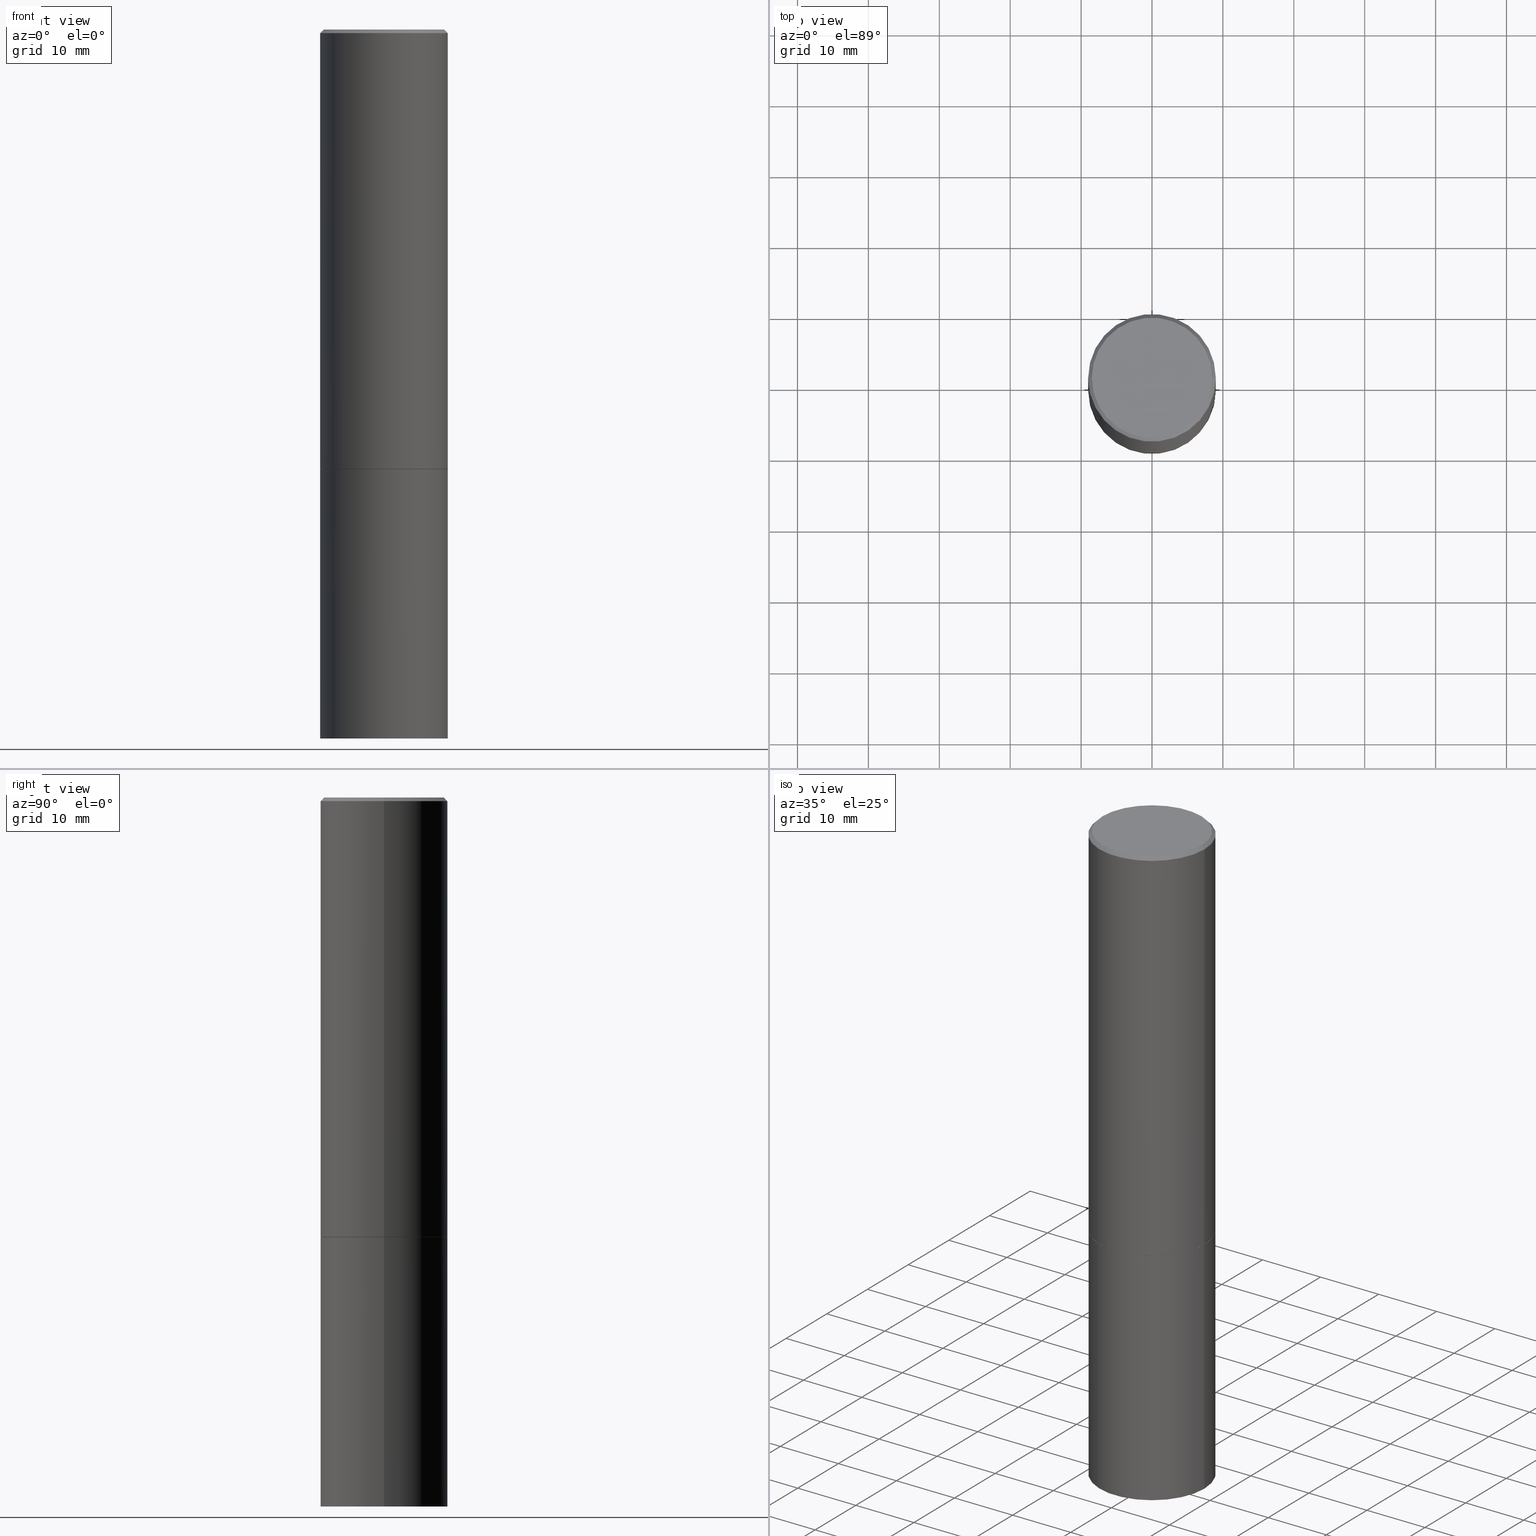
[diagram: canonical four-view strip — front | top / right | iso, engineering-drawing reading convention]
A machine part, canonical four-view strip (front | top / right | iso — engineering-drawing reading convention). The complete STEP part file that produces these views, byte-faithful:
ISO-10303-21;
HEADER;
FILE_DESCRIPTION (( 'STEP AP203' ),
    '1' );
FILE_NAME ('48774.STEP',
    '2024-02-28T14:32:07',
    ( '' ),
    ( '' ),
    'SwSTEP 2.0',
    'SolidWorks 2023',
    '' );
FILE_SCHEMA (( 'CONFIG_CONTROL_DESIGN' ));
ENDSEC;

DATA;
#1 = COORDINATED_UNIVERSAL_TIME_OFFSET ( 5, 0, .BEHIND. ) ;
#2 = EDGE_CURVE ( 'NONE', #173, #130, #120, .T. ) ;
#3 = VERTEX_POINT ( 'NONE', #178 ) ;
#4 = ORIENTED_EDGE ( 'NONE', *, *, #361, .T. ) ;
#5 = EDGE_CURVE ( 'NONE', #58, #191, #153, .T. ) ;
#6 = EDGE_LOOP ( 'NONE', ( #194, #89, #85, #307 ) ) ;
#7 = ORIENTED_EDGE ( 'NONE', *, *, #334, .T. ) ;
#8 = DIRECTION ( 'NONE',  ( 1.000000000000000000, -6.982962677686265922E-15, 0.000000000000000000 ) ) ;
#9 = AXIS2_PLACEMENT_3D ( 'NONE', #214, #159, #212 ) ;
#10 = CARTESIAN_POINT ( 'NONE',  ( 4.890937612370294178E-31, -6.982962677686321191E-17, -0.02000000000000008715 ) ) ;
#11 = DIRECTION ( 'NONE',  ( 2.445468806185136597E-29, -3.491481338843145583E-15, -1.000000000000000000 ) ) ;
#12 = DIRECTION ( 'NONE',  ( 1.000000000000000000, -6.982962677686266711E-15, 4.876176775795935232E-29 ) ) ;
#13 = VECTOR ( 'NONE', #344, 39.37007874015748143 ) ;
#14 = VECTOR ( 'NONE', #201, 39.37007874015748854 ) ;
#15 = LOCAL_TIME ( 9, 32, 7.000000000000000000, #320 ) ;
#16 = CARTESIAN_POINT ( 'NONE',  ( -0.3533499999999999974, -6.006355588825696969E-15, -2.440900000000000070 ) ) ;
#17 = PRODUCT_DEFINITION ( 'UNKNOWN', '', #96, #249 ) ;
#18 = FACE_OUTER_BOUND ( 'NONE', #92, .T. ) ;
#19 = FACE_OUTER_BOUND ( 'NONE', #81, .T. ) ;
#20 = EDGE_CURVE ( 'NONE', #3, #140, #128, .T. ) ;
#21 = DIRECTION ( 'NONE',  ( -2.445468806185136597E-29, 3.491481338843145583E-15, 1.000000000000000000 ) ) ;
#22 = CONICAL_SURFACE ( 'NONE', #9, 0.3533499999999999974, 0.7853981633975507526 ) ;
#23 = EDGE_LOOP ( 'NONE', ( #228, #319, #56, #51 ) ) ;
#24 = DIRECTION ( 'NONE',  ( 1.000000000000000000, -6.982962677686268288E-15, 0.000000000000000000 ) ) ;
#25 = DIRECTION ( 'NONE',  ( 1.000000000000000000, -6.982962677686265922E-15, 0.000000000000000000 ) ) ;
#26 =( NAMED_UNIT ( * ) PLANE_ANGLE_UNIT ( ) SI_UNIT ( $, .RADIAN. ) );
#27 = AXIS2_PLACEMENT_3D ( 'NONE', #80, #113, #247 ) ;
#28 = PRODUCT_DEFINITION_SHAPE ( 'NONE', 'NONE',  #17 ) ;
#29 = CC_DESIGN_APPROVAL ( #219, ( #96 ) ) ;
#30 = DATE_TIME_ROLE ( 'creation_date' ) ;
#31 = ORIENTED_EDGE ( 'NONE', *, *, #71, .T. ) ;
#32 = APPROVAL_STATUS ( 'not_yet_approved' ) ;
#33 = ORIENTED_EDGE ( 'NONE', *, *, #5, .T. ) ;
#34 = EDGE_CURVE ( 'NONE', #112, #39, #210, .T. ) ;
#35 = MECHANICAL_CONTEXT ( 'NONE', #281, 'mechanical' ) ;
#36 = ORIENTED_EDGE ( 'NONE', *, *, #310, .F. ) ;
#37 = CIRCLE ( 'NONE', #38, 0.3543499999999999983 ) ;
#38 = AXIS2_PLACEMENT_3D ( 'NONE', #213, #296, #264 ) ;
#39 = VERTEX_POINT ( 'NONE', #295 ) ;
#40 = ORIENTED_EDGE ( 'NONE', *, *, #206, .T. ) ;
#41 = PLANE ( 'NONE',  #218 ) ;
#42 = CARTESIAN_POINT ( 'NONE',  ( 5.969144809017299038E-29, -8.522356799982232966E-15, -2.440900000000000070 ) ) ;
#43 = FACE_OUTER_BOUND ( 'NONE', #341, .T. ) ;
#44 = EDGE_CURVE ( 'NONE', #140, #39, #115, .T. ) ;
#45 = DIRECTION ( 'NONE',  ( 1.000000000000000000, -6.982962677686265922E-15, 0.000000000000000000 ) ) ;
#46 = AXIS2_PLACEMENT_3D ( 'NONE', #220, #308, #25 ) ;
#47 = CARTESIAN_POINT ( 'NONE',  ( 0.000000000000000000, 0.000000000000000000, 0.000000000000000000 ) ) ;
#48 = ADVANCED_BREP_SHAPE_REPRESENTATION ( '48774', ( #224, #347, #166 ), #123 ) ;
#49 = DIRECTION ( 'NONE',  ( 1.000000000000000000, -6.982962677686266711E-15, 0.000000000000000000 ) ) ;
#50 = EDGE_CURVE ( 'NONE', #363, #130, #314, .T. ) ;
#51 = ORIENTED_EDGE ( 'NONE', *, *, #345, .T. ) ;
#52 = PLANE ( 'NONE',  #359 ) ;
#53 = CARTESIAN_POINT ( 'NONE',  ( 5.969144809017299038E-29, -8.522356799982232966E-15, -2.440900000000000070 ) ) ;
#54 = AXIS2_PLACEMENT_3D ( 'NONE', #268, #350, #12 ) ;
#55 = FACE_OUTER_BOUND ( 'NONE', #287, .T. ) ;
#56 = ORIENTED_EDGE ( 'NONE', *, *, #50, .T. ) ;
#57 = PRODUCT_RELATED_PRODUCT_CATEGORY ( 'detail', '', ( #278 ) ) ;
#58 = VERTEX_POINT ( 'NONE', #147 ) ;
#59 = ORIENTED_EDGE ( 'NONE', *, *, #310, .T. ) ;
#60 = PERSON_AND_ORGANIZATION ( #266, #215 ) ;
#61 = ORIENTED_EDGE ( 'NONE', *, *, #182, .T. ) ;
#62 = DIMENSIONAL_EXPONENTS ( 1.000000000000000000, 0.000000000000000000, 0.000000000000000000, 0.000000000000000000, 0.000000000000000000, 0.000000000000000000, 0.000000000000000000 ) ;
#63 = DIRECTION ( 'NONE',  ( 0.000000000000000000, 0.000000000000000000, 1.000000000000000000 ) ) ;
#64 = ORIENTED_EDGE ( 'NONE', *, *, #2, .T. ) ;
#65 = APPROVAL_ROLE ( '' ) ;
#66 = EDGE_LOOP ( 'NONE', ( #91, #145 ) ) ;
#67 = VECTOR ( 'NONE', #180, 39.37007874015748143 ) ;
#68 = AXIS2_PLACEMENT_3D ( 'NONE', #302, #73, #45 ) ;
#69 = APPROVAL_DATE_TIME ( #146, #219 ) ;
#70 = CARTESIAN_POINT ( 'NONE',  ( 0.3543499999999999983, -2.474412824838128694E-15, 1.727873240503289749E-29 ) ) ;
#71 = EDGE_CURVE ( 'NONE', #363, #207, #366, .T. ) ;
#72 = DIRECTION ( 'NONE',  ( 1.000000000000000000, -6.982962677686266711E-15, 4.876176775795935232E-29 ) ) ;
#73 = DIRECTION ( 'NONE',  ( -2.445468806185136597E-29, 3.491481338843145583E-15, 1.000000000000000000 ) ) ;
#74 = CALENDAR_DATE ( 2024, 28, 2 ) ;
#75 = CARTESIAN_POINT ( 'NONE',  ( 2.474412824838224146E-15, 0.3543499999999862871, -3.937000000000001165 ) ) ;
#76 = EDGE_CURVE ( 'NONE', #3, #112, #37, .T. ) ;
#77 = DIRECTION ( 'NONE',  ( -2.445468806185136597E-29, 3.491481338843145583E-15, 1.000000000000000000 ) ) ;
#78 = FACE_OUTER_BOUND ( 'NONE', #260, .T. ) ;
#79 = CC_DESIGN_PERSON_AND_ORGANIZATION_ASSIGNMENT ( #346, #227, ( #96 ) ) ;
#80 = CARTESIAN_POINT ( 'NONE',  ( 4.890937612370294178E-31, -6.982962677686321191E-17, -0.02000000000000008715 ) ) ;
#81 = EDGE_LOOP ( 'NONE', ( #31, #235 ) ) ;
#82 =( LENGTH_UNIT ( ) NAMED_UNIT ( * ) SI_UNIT ( $, .METRE. ) );
#83 = ADVANCED_FACE ( 'NONE', ( #270 ), #327, .T. ) ;
#84 =( NAMED_UNIT ( * ) SI_UNIT ( $, .STERADIAN. ) SOLID_ANGLE_UNIT ( ) );
#85 = ORIENTED_EDGE ( 'NONE', *, *, #34, .T. ) ;
#86 = CARTESIAN_POINT ( 'NONE',  ( 0.000000000000000000, 0.000000000000000000, 0.000000000000000000 ) ) ;
#87 = CARTESIAN_POINT ( 'NONE',  ( -0.3543499999999997208, 2.404583198061263424E-15, -0.02000000000000008715 ) ) ;
#88 = EDGE_CURVE ( 'NONE', #58, #173, #355, .T. ) ;
#89 = ORIENTED_EDGE ( 'NONE', *, *, #76, .T. ) ;
#90 = VECTOR ( 'NONE', #336, 39.37007874015748143 ) ;
#91 = ORIENTED_EDGE ( 'NONE', *, *, #245, .F. ) ;
#92 = EDGE_LOOP ( 'NONE', ( #254, #4, #285, #154 ) ) ;
#93 = PERSON_AND_ORGANIZATION ( #266, #215 ) ;
#94 = DIRECTION ( 'NONE',  ( -2.445468806185136877E-29, 3.491481338843145188E-15, 1.000000000000000000 ) ) ;
#95 = CIRCLE ( 'NONE', #304, 0.3543499999999997208 ) ;
#96 = PRODUCT_DEFINITION_FORMATION_WITH_SPECIFIED_SOURCE ( 'ANY', '', #278, .NOT_KNOWN. ) ;
#97 = ADVANCED_FACE ( 'NONE', ( #217 ), #41, .T. ) ;
#98 = DATE_AND_TIME ( #74, #109 ) ;
#99 = FACE_OUTER_BOUND ( 'NONE', #6, .T. ) ;
#100 = DIRECTION ( 'NONE',  ( 1.000000000000000000, -6.982962677686266711E-15, 4.876176775795935793E-29 ) ) ;
#101 = DIRECTION ( 'NONE',  ( 1.000000000000000000, -6.982962677686268288E-15, 0.000000000000000000 ) ) ;
#102 = ADVANCED_FACE ( 'NONE', ( #158 ), #132, .T. ) ;
#103 = CLOSED_SHELL ( 'NONE', ( #329, #83, #114, #133, #102, #156, #286, #351 ) ) ;
#104 = CONICAL_SURFACE ( 'NONE', #131, 0.3543499999999997208, 0.7853981633974476129 ) ;
#105 = CC_DESIGN_APPROVAL ( #199, ( #17 ) ) ;
#106 = DIRECTION ( 'NONE',  ( 1.000000000000000000, -6.982962677686266711E-15, 4.876061227832602160E-29 ) ) ;
#107 = DIRECTION ( 'NONE',  ( -2.445468806185136597E-29, 3.491481338843145583E-15, 1.000000000000000000 ) ) ;
#108 = AXIS2_PLACEMENT_3D ( 'NONE', #42, #107, #333 ) ;
#109 = LOCAL_TIME ( 9, 32, 7.000000000000000000, #256 ) ;
#110 = DIRECTION ( 'NONE',  ( -2.445468806185136597E-29, 3.491481338843145583E-15, 1.000000000000000000 ) ) ;
#111 = CARTESIAN_POINT ( 'NONE',  ( 0.3543499999999997208, -2.500847092287203718E-15, -0.02000000000000008715 ) ) ;
#112 = VERTEX_POINT ( 'NONE', #155 ) ;
#113 = DIRECTION ( 'NONE',  ( -2.445468806185136597E-29, 3.491481338843145583E-15, 1.000000000000000000 ) ) ;
#114 = ADVANCED_FACE ( 'NONE', ( #18 ), #104, .T. ) ;
#115 = CIRCLE ( 'NONE', #322, 0.3543499999999999983 ) ;
#116 = LENGTH_MEASURE_WITH_UNIT ( LENGTH_MEASURE( 0.02539999999999999897 ), #82 );
#117 = APPROVAL_ROLE ( '' ) ;
#118 = EDGE_CURVE ( 'NONE', #258, #58, #134, .T. ) ;
#119 = PERSON_AND_ORGANIZATION_ROLE ( 'design_owner' ) ;
#120 = LINE ( 'NONE', #126, #196 ) ;
#121 = DATE_AND_TIME ( #176, #15 ) ;
#122 = DIRECTION ( 'NONE',  ( -2.445468806185136877E-29, 3.491481338843145188E-15, 1.000000000000000000 ) ) ;
#123 =( GEOMETRIC_REPRESENTATION_CONTEXT ( 3 ) GLOBAL_UNCERTAINTY_ASSIGNED_CONTEXT ( ( #129 ) ) GLOBAL_UNIT_ASSIGNED_CONTEXT ( ( #338, #26, #84 ) ) REPRESENTATION_CONTEXT ( 'NONE', 'WORKASPACE' ) );
#124 = LOCAL_TIME ( 9, 32, 7.000000000000000000, #208 ) ;
#125 = PERSON_AND_ORGANIZATION_ROLE ( 'creator' ) ;
#126 = CARTESIAN_POINT ( 'NONE',  ( -0.3543499999999998873, 2.517808184165914208E-15, -1.743024649231825225E-29 ) ) ;
#127 = DATE_AND_TIME ( #174, #171 ) ;
#128 = LINE ( 'NONE', #343, #223 ) ;
#129 = UNCERTAINTY_MEASURE_WITH_UNIT (LENGTH_MEASURE( 1.000000000000000082E-05 ), #338, 'distance_accuracy_value', 'NONE');
#130 = VERTEX_POINT ( 'NONE', #216 ) ;
#131 = AXIS2_PLACEMENT_3D ( 'NONE', #137, #11, #239 ) ;
#132 = CYLINDRICAL_SURFACE ( 'NONE', #54, 0.3543499999999998873 ) ;
#133 = ADVANCED_FACE ( 'NONE', ( #332 ), #225, .T. ) ;
#134 = LINE ( 'NONE', #244, #283 ) ;
#135 = DIRECTION ( 'NONE',  ( -2.445468806185136597E-29, 3.491481338843145583E-15, 1.000000000000000000 ) ) ;
#136 = CARTESIAN_POINT ( 'NONE',  ( 0.000000000000000000, 0.000000000000000000, 0.000000000000000000 ) ) ;
#137 = CARTESIAN_POINT ( 'NONE',  ( 4.890937612370294178E-31, -6.982962677686321191E-17, -0.02000000000000008715 ) ) ;
#138 = CARTESIAN_POINT ( 'NONE',  ( 0.3533499999999999974, -1.098978666214267525E-14, -2.440900000000000070 ) ) ;
#139 = CARTESIAN_POINT ( 'NONE',  ( 5.969144809017300159E-29, -8.522356799982234543E-15, -2.440900000000000070 ) ) ;
#140 = VERTEX_POINT ( 'NONE', #160 ) ;
#141 = CARTESIAN_POINT ( 'NONE',  ( -0.3343499999999996475, 2.369668384672832169E-15, 4.268512490083961526E-18 ) ) ;
#142 = DIRECTION ( 'NONE',  ( 1.000000000000000000, -6.982962677686265133E-15, 0.000000000000000000 ) ) ;
#143 = ORIENTED_EDGE ( 'NONE', *, *, #245, .T. ) ;
#144 = CIRCLE ( 'NONE', #209, 0.3343499999999996475 ) ;
#145 = ORIENTED_EDGE ( 'NONE', *, *, #76, .F. ) ;
#146 = DATE_AND_TIME ( #316, #360 ) ;
#147 = CARTESIAN_POINT ( 'NONE',  ( 0.3543499999999999983, -1.099327814348151984E-14, -2.439900000000000180 ) ) ;
#148 = APPROVAL_ROLE ( '' ) ;
#149 = VERTEX_POINT ( 'NONE', #16 ) ;
#150 = ORIENTED_EDGE ( 'NONE', *, *, #182, .F. ) ;
#151 = AXIS2_PLACEMENT_3D ( 'NONE', #47, #240, #162 ) ;
#152 = ADVANCED_FACE ( 'NONE', ( #99 ), #352, .T. ) ;
#153 = LINE ( 'NONE', #232, #13 ) ;
#154 = ORIENTED_EDGE ( 'NONE', *, *, #50, .F. ) ;
#155 = CARTESIAN_POINT ( 'NONE',  ( 0.3543499999999999983, -1.622037485586359329E-14, -3.937000000000000277 ) ) ;
#156 = ADVANCED_FACE ( 'NONE', ( #43 ), #22, .T. ) ;
#157 = APPROVAL_PERSON_ORGANIZATION ( #170, #199, #65 ) ;
#158 = FACE_OUTER_BOUND ( 'NONE', #280, .T. ) ;
#159 = DIRECTION ( 'NONE',  ( -2.445468806185136597E-29, 3.491481338843145583E-15, 1.000000000000000000 ) ) ;
#160 = CARTESIAN_POINT ( 'NONE',  ( -0.3543499999999999983, -8.616351231337934377E-15, -2.440900000000000070 ) ) ;
#161 = CC_DESIGN_SECURITY_CLASSIFICATION ( #189, ( #96 ) ) ;
#162 = DIRECTION ( 'NONE',  ( 1.000000000000000000, -6.982962677686266711E-15, 4.876176775795935793E-29 ) ) ;
#163 = CARTESIAN_POINT ( 'NONE',  ( 2.334753571284400520E-15, 0.3343499999999996475, -1.165242529397154385E-15 ) ) ;
#164 = FACE_OUTER_BOUND ( 'NONE', #248, .T. ) ;
#165 = EDGE_CURVE ( 'NONE', #207, #363, #144, .T. ) ;
#166 = AXIS2_PLACEMENT_3D ( 'NONE', #86, #63, #342 ) ;
#167 = CC_DESIGN_APPROVAL ( #323, ( #189 ) ) ;
#168 = CARTESIAN_POINT ( 'NONE',  ( -0.3533499999999999974, -6.011654043173919372E-15, -2.440900000000000070 ) ) ;
#169 = DIRECTION ( 'NONE',  ( -2.445468806185136597E-29, 3.491481338843145583E-15, 1.000000000000000000 ) ) ;
#170 = PERSON_AND_ORGANIZATION ( #266, #215 ) ;
#171 = LOCAL_TIME ( 9, 32, 7.000000000000000000, #1 ) ;
#172 = ORIENTED_EDGE ( 'NONE', *, *, #250, .F. ) ;
#173 = VERTEX_POINT ( 'NONE', #328 ) ;
#174 = CALENDAR_DATE ( 2024, 28, 2 ) ;
#175 = DIRECTION ( 'NONE',  ( -2.445468806185136597E-29, 3.491481338843145583E-15, 1.000000000000000000 ) ) ;
#176 = CALENDAR_DATE ( 2024, 28, 2 ) ;
#177 = CIRCLE ( 'NONE', #68, 0.3543499999999999983 ) ;
#178 = CARTESIAN_POINT ( 'NONE',  ( -0.3543499999999999983, -8.616351231337934377E-15, -3.937000000000000277 ) ) ;
#179 = CALENDAR_DATE ( 2024, 28, 2 ) ;
#180 = DIRECTION ( 'NONE',  ( -2.445468806185136877E-29, 3.491481338843145188E-15, 1.000000000000000000 ) ) ;
#181 = DIRECTION ( 'NONE',  ( -2.445468806185136597E-29, 3.491481338843145583E-15, 1.000000000000000000 ) ) ;
#182 = EDGE_CURVE ( 'NONE', #39, #140, #177, .T. ) ;
#183 = DIRECTION ( 'NONE',  ( 2.438088387897960049E-29, -3.491481338843145188E-15, -1.000000000000000000 ) ) ;
#184 = DIRECTION ( 'NONE',  ( 0.7071067811866199593, -2.468850131083015945E-15, 0.7071067811864750752 ) ) ;
#185 = CARTESIAN_POINT ( 'NONE',  ( -1.043851414335219820E-46, 1.490343170380447200E-32, 4.268512490100411279E-18 ) ) ;
#186 = CC_DESIGN_DATE_AND_TIME_ASSIGNMENT ( #294, #229, ( #189 ) ) ;
#187 = DIRECTION ( 'NONE',  ( -2.445468806185136597E-29, 3.491481338843145583E-15, 1.000000000000000000 ) ) ;
#188 = CIRCLE ( 'NONE', #202, 0.3533499999999999974 ) ;
#189 = SECURITY_CLASSIFICATION ( '', '', #340 ) ;
#190 = CARTESIAN_POINT ( 'NONE',  ( 4.890937612370294178E-31, -6.982962677686321191E-17, -0.02000000000000008715 ) ) ;
#191 = VERTEX_POINT ( 'NONE', #298 ) ;
#192 = APPLICATION_PROTOCOL_DEFINITION ( 'international standard', 'config_control_design', 1994, #281 ) ;
#193 = CC_DESIGN_PERSON_AND_ORGANIZATION_ASSIGNMENT ( #325, #253, ( #189 ) ) ;
#194 = ORIENTED_EDGE ( 'NONE', *, *, #20, .F. ) ;
#195 = DIRECTION ( 'NONE',  ( -1.000000000000000000, 6.982962677686265922E-15, -4.876176775795935793E-29 ) ) ;
#196 = VECTOR ( 'NONE', #122, 39.37007874015748143 ) ;
#197 = CARTESIAN_POINT ( 'NONE',  ( 5.966699340211115678E-29, -8.518865318643391536E-15, -2.439900000000000180 ) ) ;
#198 = ORIENTED_EDGE ( 'NONE', *, *, #250, .T. ) ;
#199 = APPROVAL ( #284, 'UNSPECIFIED' ) ;
#200 = APPROVAL_DATE_TIME ( #127, #199 ) ;
#201 = DIRECTION ( 'NONE',  ( -0.7071067811865469066, 2.468850131082251144E-15, -0.7071067811865479058 ) ) ;
#202 = AXIS2_PLACEMENT_3D ( 'NONE', #53, #305, #142 ) ;
#203 = COORDINATED_UNIVERSAL_TIME_OFFSET ( 5, 0, .BEHIND. ) ;
#204 = ORIENTED_EDGE ( 'NONE', *, *, #34, .F. ) ;
#205 = ORIENTED_EDGE ( 'NONE', *, *, #5, .F. ) ;
#206 = EDGE_CURVE ( 'NONE', #149, #258, #263, .T. ) ;
#207 = VERTEX_POINT ( 'NONE', #265 ) ;
#208 = COORDINATED_UNIVERSAL_TIME_OFFSET ( 5, 0, .BEHIND. ) ;
#209 = AXIS2_PLACEMENT_3D ( 'NONE', #185, #187, #357 ) ;
#210 = LINE ( 'NONE', #70, #67 ) ;
#211 = SHAPE_DEFINITION_REPRESENTATION ( #28, #48 ) ;
#212 = DIRECTION ( 'NONE',  ( 1.000000000000000000, -6.982962677686265133E-15, 0.000000000000000000 ) ) ;
#213 = CARTESIAN_POINT ( 'NONE',  ( 9.627810689950883669E-29, -1.374596203102546341E-14, -3.937000000000000277 ) ) ;
#214 = CARTESIAN_POINT ( 'NONE',  ( 5.969144809017299038E-29, -8.522356799982232966E-15, -2.440900000000000070 ) ) ;
#215 = ORGANIZATION ( 'UNSPECIFIED', 'UNSPECIFIED', '' ) ;
#216 = CARTESIAN_POINT ( 'NONE',  ( -0.3543499999999997208, 2.404583198061263424E-15, -0.02000000000000008715 ) ) ;
#217 = FACE_OUTER_BOUND ( 'NONE', #66, .T. ) ;
#218 = AXIS2_PLACEMENT_3D ( 'NONE', #75, #183, #353 ) ;
#219 = APPROVAL ( #259, 'UNSPECIFIED' ) ;
#220 = CARTESIAN_POINT ( 'NONE',  ( 9.627810689950883669E-29, -1.374596203102546341E-14, -3.937000000000000277 ) ) ;
#221 = DIRECTION ( 'NONE',  ( 2.438088387897960049E-29, -3.491481338843145188E-15, -1.000000000000000000 ) ) ;
#222 = DIRECTION ( 'NONE',  ( 2.438088387897960049E-29, -3.491481338843145188E-15, -1.000000000000000000 ) ) ;
#223 = VECTOR ( 'NONE', #94, 39.37007874015748143 ) ;
#224 = MANIFOLD_SOLID_BREP ( 'Body-Move/Copy2[1]', #354 ) ;
#225 = CONICAL_SURFACE ( 'NONE', #243, 0.3543499999999997208, 0.7853981633974476129 ) ;
#226 = CARTESIAN_POINT ( 'NONE',  ( 5.969144809017299038E-29, -8.522356799982232966E-15, -2.440900000000000070 ) ) ;
#227 = PERSON_AND_ORGANIZATION_ROLE ( 'creator' ) ;
#228 = ORIENTED_EDGE ( 'NONE', *, *, #361, .F. ) ;
#229 = DATE_TIME_ROLE ( 'classification_date' ) ;
#230 = CARTESIAN_POINT ( 'NONE',  ( -1.043851414335219820E-46, 1.490343170380447200E-32, 4.268512490100411279E-18 ) ) ;
#231 = AXIS2_PLACEMENT_3D ( 'NONE', #163, #222, #276 ) ;
#232 = CARTESIAN_POINT ( 'NONE',  ( 0.3543499999999998873, -2.474412824838127905E-15, 1.727873240503289188E-29 ) ) ;
#233 = APPLICATION_PROTOCOL_DEFINITION ( 'international standard', 'config_control_design', 1994, #289 ) ;
#234 = EDGE_LOOP ( 'NONE', ( #321, #64, #326, #205 ) ) ;
#235 = ORIENTED_EDGE ( 'NONE', *, *, #165, .T. ) ;
#236 = AXIS2_PLACEMENT_3D ( 'NONE', #226, #110, #311 ) ;
#237 = ORIENTED_EDGE ( 'NONE', *, *, #44, .T. ) ;
#238 = APPROVAL_PERSON_ORGANIZATION ( #60, #323, #148 ) ;
#239 = DIRECTION ( 'NONE',  ( -1.000000000000000000, 6.982962677686266711E-15, 0.000000000000000000 ) ) ;
#240 = DIRECTION ( 'NONE',  ( -2.445468806185136597E-29, 3.491481338843145583E-15, 1.000000000000000000 ) ) ;
#241 = CARTESIAN_POINT ( 'NONE',  ( 0.000000000000000000, 0.000000000000000000, 0.000000000000000000 ) ) ;
#242 = ADVANCED_FACE ( 'NONE', ( #78 ), #303, .T. ) ;
#243 = AXIS2_PLACEMENT_3D ( 'NONE', #10, #267, #301 ) ;
#244 = CARTESIAN_POINT ( 'NONE',  ( 0.3533499999999999974, -1.098978666214267525E-14, -2.440900000000000070 ) ) ;
#245 = EDGE_CURVE ( 'NONE', #112, #3, #339, .T. ) ;
#246 = CONICAL_SURFACE ( 'NONE', #236, 0.3533499999999999974, 0.7853981633975507526 ) ;
#247 = DIRECTION ( 'NONE',  ( 1.000000000000000000, -6.982962677686266711E-15, 0.000000000000000000 ) ) ;
#248 = EDGE_LOOP ( 'NONE', ( #59, #7, #293, #274 ) ) ;
#249 = DESIGN_CONTEXT ( 'detailed design', #289, 'design' ) ;
#250 = EDGE_CURVE ( 'NONE', #173, #58, #269, .T. ) ;
#251 = AXIS2_PLACEMENT_3D ( 'NONE', #197, #169, #24 ) ;
#252 = ORIENTED_EDGE ( 'NONE', *, *, #334, .F. ) ;
#253 = PERSON_AND_ORGANIZATION_ROLE ( 'classification_officer' ) ;
#254 = ORIENTED_EDGE ( 'NONE', *, *, #165, .F. ) ;
#255 = CC_DESIGN_DATE_AND_TIME_ASSIGNMENT ( #121, #30, ( #17 ) ) ;
#256 = COORDINATED_UNIVERSAL_TIME_OFFSET ( 5, 0, .BEHIND. ) ;
#257 = ORIENTED_EDGE ( 'NONE', *, *, #20, .T. ) ;
#258 = VERTEX_POINT ( 'NONE', #138 ) ;
#259 = APPROVAL_STATUS ( 'not_yet_approved' ) ;
#260 = EDGE_LOOP ( 'NONE', ( #143, #257, #150, #204 ) ) ;
#261 = CARTESIAN_POINT ( 'NONE',  ( 5.969144809017300159E-29, -8.522356799982234543E-15, -2.440900000000000070 ) ) ;
#262 = CC_DESIGN_PERSON_AND_ORGANIZATION_ASSIGNMENT ( #288, #119, ( #278 ) ) ;
#263 = CIRCLE ( 'NONE', #108, 0.3533499999999999974 ) ;
#264 = DIRECTION ( 'NONE',  ( 1.000000000000000000, -6.982962677686265922E-15, 0.000000000000000000 ) ) ;
#265 = CARTESIAN_POINT ( 'NONE',  ( 0.3343499999999996475, -2.397327298921056737E-15, 4.268512490116958099E-18 ) ) ;
#266 = PERSON ( 'UNSPECIFIED', 'UNSPECIFIED', 'UNSPECIFIED', ('UNSPECIFIED'), ('UNSPECIFIED'), ('UNSPECIFIED') ) ;
#267 = DIRECTION ( 'NONE',  ( 2.445468806185136597E-29, -3.491481338843145583E-15, -1.000000000000000000 ) ) ;
#268 = CARTESIAN_POINT ( 'NONE',  ( 0.000000000000000000, 0.000000000000000000, 0.000000000000000000 ) ) ;
#269 = CIRCLE ( 'NONE', #251, 0.3543499999999999983 ) ;
#270 = FACE_OUTER_BOUND ( 'NONE', #234, .T. ) ;
#271 = EDGE_CURVE ( 'NONE', #191, #130, #95, .T. ) ;
#272 = DIRECTION ( 'NONE',  ( 0.7071067811865469066, -7.319954787623252890E-15, -0.7071067811865479058 ) ) ;
#273 = LINE ( 'NONE', #168, #90 ) ;
#274 = ORIENTED_EDGE ( 'NONE', *, *, #118, .F. ) ;
#275 = CIRCLE ( 'NONE', #27, 0.3543499999999997208 ) ;
#276 = DIRECTION ( 'NONE',  ( -1.000000000000000000, 6.982962677686265922E-15, -4.876176775795935793E-29 ) ) ;
#277 = CC_DESIGN_PERSON_AND_ORGANIZATION_ASSIGNMENT ( #93, #313, ( #96 ) ) ;
#278 = PRODUCT ( '48774', '48774', '', ( #35 ) ) ;
#279 = DIRECTION ( 'NONE',  ( 1.000000000000000000, -6.982962677686265922E-15, 4.876176775795935793E-29 ) ) ;
#280 = EDGE_LOOP ( 'NONE', ( #337, #198, #33, #290 ) ) ;
#281 = APPLICATION_CONTEXT ( 'configuration controlled 3d designs of mechanical parts and assemblies' ) ;
#282 = CARTESIAN_POINT ( 'NONE',  ( 2.474412824838187859E-15, 0.3543499999999914496, -2.440900000000001402 ) ) ;
#283 = VECTOR ( 'NONE', #184, 39.37007874015748143 ) ;
#284 = APPROVAL_STATUS ( 'not_yet_approved' ) ;
#285 = ORIENTED_EDGE ( 'NONE', *, *, #271, .T. ) ;
#286 = ADVANCED_FACE ( 'NONE', ( #364 ), #365, .F. ) ;
#287 = EDGE_LOOP ( 'NONE', ( #61, #237 ) ) ;
#288 = PERSON_AND_ORGANIZATION ( #266, #215 ) ;
#289 = APPLICATION_CONTEXT ( 'configuration controlled 3d designs of mechanical parts and assemblies' ) ;
#290 = ORIENTED_EDGE ( 'NONE', *, *, #345, .F. ) ;
#291 = AXIS2_PLACEMENT_3D ( 'NONE', #136, #77, #100 ) ;
#292 = PERSON_AND_ORGANIZATION ( #266, #215 ) ;
#293 = ORIENTED_EDGE ( 'NONE', *, *, #88, .F. ) ;
#294 = DATE_AND_TIME ( #179, #124 ) ;
#295 = CARTESIAN_POINT ( 'NONE',  ( 0.3543499999999999983, -1.099676962482036284E-14, -2.440900000000000070 ) ) ;
#296 = DIRECTION ( 'NONE',  ( -2.445468806185136597E-29, 3.491481338843145583E-15, 1.000000000000000000 ) ) ;
#297 = VECTOR ( 'NONE', #272, 39.37007874015748854 ) ;
#298 = CARTESIAN_POINT ( 'NONE',  ( 0.3543499999999997208, -2.500847092287203718E-15, -0.02000000000000008715 ) ) ;
#299 = ADVANCED_FACE ( 'NONE', ( #55 ), #52, .F. ) ;
#300 = APPROVAL_DATE_TIME ( #98, #323 ) ;
#301 = DIRECTION ( 'NONE',  ( -1.000000000000000000, 6.982962677686266711E-15, 0.000000000000000000 ) ) ;
#302 = CARTESIAN_POINT ( 'NONE',  ( 5.969144809017300159E-29, -8.522356799982234543E-15, -2.440900000000000070 ) ) ;
#303 = CYLINDRICAL_SURFACE ( 'NONE', #151, 0.3543499999999999983 ) ;
#304 = AXIS2_PLACEMENT_3D ( 'NONE', #190, #21, #49 ) ;
#305 = DIRECTION ( 'NONE',  ( -2.445468806185136597E-29, 3.491481338843145583E-15, 1.000000000000000000 ) ) ;
#306 = CC_DESIGN_PERSON_AND_ORGANIZATION_ASSIGNMENT ( #318, #125, ( #17 ) ) ;
#307 = ORIENTED_EDGE ( 'NONE', *, *, #44, .F. ) ;
#308 = DIRECTION ( 'NONE',  ( -2.445468806185136597E-29, 3.491481338843145583E-15, 1.000000000000000000 ) ) ;
#309 = DIRECTION ( 'NONE',  ( -2.438088387897960049E-29, 3.491481338843145188E-15, 1.000000000000000000 ) ) ;
#310 = EDGE_CURVE ( 'NONE', #258, #149, #188, .T. ) ;
#311 = DIRECTION ( 'NONE',  ( 1.000000000000000000, -6.982962677686265133E-15, 0.000000000000000000 ) ) ;
#312 = ORIENTED_EDGE ( 'NONE', *, *, #206, .F. ) ;
#313 = PERSON_AND_ORGANIZATION_ROLE ( 'design_supplier' ) ;
#314 = LINE ( 'NONE', #87, #14 ) ;
#315 = AXIS2_PLACEMENT_3D ( 'NONE', #230, #135, #106 ) ;
#316 = CALENDAR_DATE ( 2024, 28, 2 ) ;
#317 = ORIENTED_EDGE ( 'NONE', *, *, #118, .T. ) ;
#318 = PERSON_AND_ORGANIZATION ( #266, #215 ) ;
#319 = ORIENTED_EDGE ( 'NONE', *, *, #71, .F. ) ;
#320 = COORDINATED_UNIVERSAL_TIME_OFFSET ( 5, 0, .BEHIND. ) ;
#321 = ORIENTED_EDGE ( 'NONE', *, *, #88, .T. ) ;
#322 = AXIS2_PLACEMENT_3D ( 'NONE', #261, #175, #8 ) ;
#323 = APPROVAL ( #32, 'UNSPECIFIED' ) ;
#324 = AXIS2_PLACEMENT_3D ( 'NONE', #356, #181, #101 ) ;
#325 = PERSON_AND_ORGANIZATION ( #266, #215 ) ;
#326 = ORIENTED_EDGE ( 'NONE', *, *, #271, .F. ) ;
#327 = CYLINDRICAL_SURFACE ( 'NONE', #335, 0.3543499999999998873 ) ;
#328 = CARTESIAN_POINT ( 'NONE',  ( -0.3543499999999999983, -1.776539288544209660E-15, -2.439900000000000180 ) ) ;
#329 = ADVANCED_FACE ( 'NONE', ( #164 ), #246, .T. ) ;
#330 = DIRECTION ( 'NONE',  ( -2.445468806185136597E-29, 3.491481338843145583E-15, 1.000000000000000000 ) ) ;
#331 = APPROVAL_PERSON_ORGANIZATION ( #292, #219, #117 ) ;
#332 = FACE_OUTER_BOUND ( 'NONE', #23, .T. ) ;
#333 = DIRECTION ( 'NONE',  ( 1.000000000000000000, -6.982962677686265133E-15, 0.000000000000000000 ) ) ;
#334 = EDGE_CURVE ( 'NONE', #149, #173, #273, .T. ) ;
#335 = AXIS2_PLACEMENT_3D ( 'NONE', #241, #330, #72 ) ;
#336 = DIRECTION ( 'NONE',  ( -0.7071067811866199593, 7.493145998870616062E-15, 0.7071067811864750752 ) ) ;
#337 = ORIENTED_EDGE ( 'NONE', *, *, #2, .F. ) ;
#338 =( CONVERSION_BASED_UNIT ( 'INCH', #116 ) LENGTH_UNIT ( ) NAMED_UNIT ( #62 ) );
#339 = CIRCLE ( 'NONE', #46, 0.3543499999999999983 ) ;
#340 = SECURITY_CLASSIFICATION_LEVEL ( 'unclassified' ) ;
#341 = EDGE_LOOP ( 'NONE', ( #252, #40, #317, #172 ) ) ;
#342 = DIRECTION ( 'NONE',  ( 1.000000000000000000, 0.000000000000000000, 0.000000000000000000 ) ) ;
#343 = CARTESIAN_POINT ( 'NONE',  ( -0.3543499999999999983, 2.517808184165914997E-15, -1.743024649231826066E-29 ) ) ;
#344 = DIRECTION ( 'NONE',  ( -2.445468806185136877E-29, 3.491481338843145188E-15, 1.000000000000000000 ) ) ;
#345 = EDGE_CURVE ( 'NONE', #130, #191, #275, .T. ) ;
#346 = PERSON_AND_ORGANIZATION ( #266, #215 ) ;
#347 = MANIFOLD_SOLID_BREP ( 'Body-Move/Copy2[2]', #103 ) ;
#348 = EDGE_LOOP ( 'NONE', ( #36, #312 ) ) ;
#349 = AXIS2_PLACEMENT_3D ( 'NONE', #139, #309, #279 ) ;
#350 = DIRECTION ( 'NONE',  ( -2.445468806185136597E-29, 3.491481338843145583E-15, 1.000000000000000000 ) ) ;
#351 = ADVANCED_FACE ( 'NONE', ( #19 ), #358, .F. ) ;
#352 = CYLINDRICAL_SURFACE ( 'NONE', #291, 0.3543499999999999983 ) ;
#353 = DIRECTION ( 'NONE',  ( -1.000000000000000000, 6.982962677686265922E-15, -4.876176775795935793E-29 ) ) ;
#354 = CLOSED_SHELL ( 'NONE', ( #242, #97, #299, #152 ) ) ;
#355 = CIRCLE ( 'NONE', #324, 0.3543499999999999983 ) ;
#356 = CARTESIAN_POINT ( 'NONE',  ( 5.966699340211115678E-29, -8.518865318643391536E-15, -2.439900000000000180 ) ) ;
#357 = DIRECTION ( 'NONE',  ( 1.000000000000000000, -6.982962677686266711E-15, 4.876061227832602160E-29 ) ) ;
#358 = PLANE ( 'NONE',  #231 ) ;
#359 = AXIS2_PLACEMENT_3D ( 'NONE', #282, #221, #195 ) ;
#360 = LOCAL_TIME ( 9, 32, 7.000000000000000000, #203 ) ;
#361 = EDGE_CURVE ( 'NONE', #207, #191, #362, .T. ) ;
#362 = LINE ( 'NONE', #111, #297 ) ;
#363 = VERTEX_POINT ( 'NONE', #141 ) ;
#364 = FACE_OUTER_BOUND ( 'NONE', #348, .T. ) ;
#365 = PLANE ( 'NONE',  #349 ) ;
#366 = CIRCLE ( 'NONE', #315, 0.3343499999999996475 ) ;
ENDSEC;
END-ISO-10303-21;
